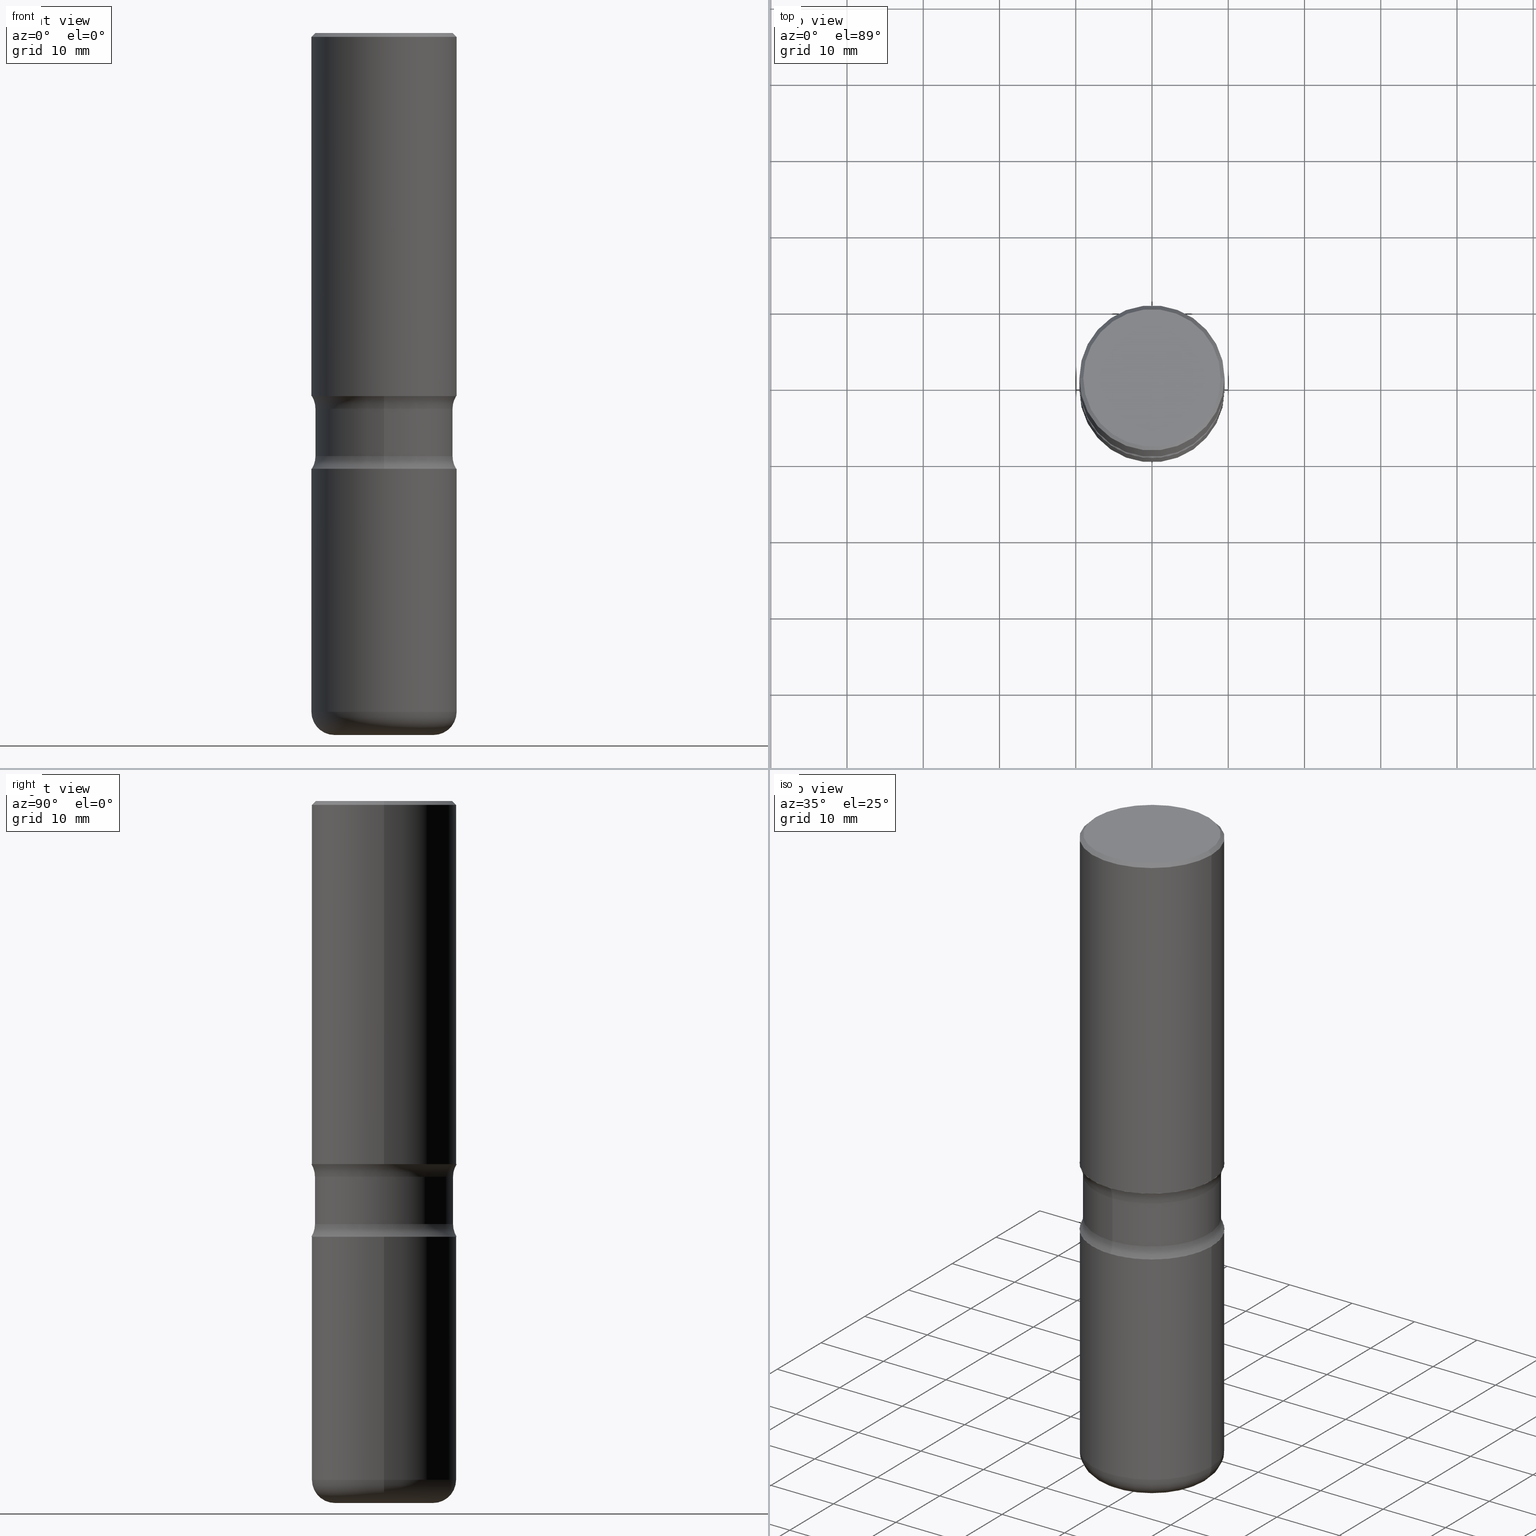
[diagram: canonical four-view strip — front | top / right | iso, engineering-drawing reading convention]
A machine part, canonical four-view strip (front | top / right | iso — engineering-drawing reading convention). The complete STEP part file that produces these views, byte-faithful:
ISO-10303-21;
HEADER;
FILE_DESCRIPTION (( 'STEP AP203' ),
    '1' );
FILE_NAME ('34115.STEP',
    '2024-03-01T23:05:45',
    ( '' ),
    ( '' ),
    'SwSTEP 2.0',
    'SolidWorks 2023',
    '' );
FILE_SCHEMA (( 'CONFIG_CONTROL_DESIGN' ));
ENDSEC;

DATA;
#1 = CYLINDRICAL_SURFACE ( 'NONE', #20, 0.3750000000000003886 ) ;
#2 = CIRCLE ( 'NONE', #207, 0.3564999999999999836 ) ;
#3 = CIRCLE ( 'NONE', #161, 0.3750000000000003886 ) ;
#4 = CARTESIAN_POINT ( 'NONE',  ( 0.3750000000000003886, -2.618611004132352383E-15, 1.828566290923477884E-29 ) ) ;
#5 = ORIENTED_EDGE ( 'NONE', *, *, #65, .F. ) ;
#6 = DATE_TIME_ROLE ( 'classification_date' ) ;
#7 = CARTESIAN_POINT ( 'NONE',  ( 2.478951750578625787E-15, 0.3550000000000001488, -1.237341619044267019E-15 ) ) ;
#8 = VERTEX_POINT ( 'NONE', #291 ) ;
#9 = COORDINATED_UNIVERSAL_TIME_OFFSET ( 5, 0, .BEHIND. ) ;
#10 = DIRECTION ( 'NONE',  ( 1.000000000000000000, -6.982962677686266711E-15, 0.000000000000000000 ) ) ;
#11 = AXIS2_PLACEMENT_3D ( 'NONE', #26, #549, #470 ) ;
#12 = EDGE_LOOP ( 'NONE', ( #104, #347, #353, #16 ) ) ;
#13 = CARTESIAN_POINT ( 'NONE',  ( 4.585254011597132801E-29, -6.546527510330900285E-15, -1.875000000000000666 ) ) ;
#14 = ORIENTED_EDGE ( 'NONE', *, *, #228, .F. ) ;
#15 = DIRECTION ( 'NONE',  ( -2.445468806185136877E-29, 3.491481338843145188E-15, 1.000000000000000000 ) ) ;
#16 = ORIENTED_EDGE ( 'NONE', *, *, #204, .F. ) ;
#17 = APPROVAL ( #394, 'UNSPECIFIED' ) ;
#18 = DIRECTION ( 'NONE',  ( -2.445468806185136597E-29, 3.491481338843145583E-15, 1.000000000000000000 ) ) ;
#19 = ORIENTED_EDGE ( 'NONE', *, *, #131, .F. ) ;
#20 = AXIS2_PLACEMENT_3D ( 'NONE', #31, #160, #333 ) ;
#21 = AXIS2_PLACEMENT_3D ( 'NONE', #119, #81, #84 ) ;
#22 = ADVANCED_FACE ( 'NONE', ( #173 ), #407, .F. ) ;
#23 = CARTESIAN_POINT ( 'NONE',  ( 4.585254011597132801E-29, -6.546527510330900285E-15, -1.875000000000000666 ) ) ;
#24 = VERTEX_POINT ( 'NONE', #412 ) ;
#25 = PLANE ( 'NONE',  #336 ) ;
#26 = CARTESIAN_POINT ( 'NONE',  ( 4.755380187780347497E-29, -6.760572911487338460E-15, -1.940442723048480866 ) ) ;
#27 = PLANE ( 'NONE',  #511 ) ;
#28 = CIRCLE ( 'NONE', #510, 0.3750000000000002776 ) ;
#29 = AXIS2_PLACEMENT_3D ( 'NONE', #127, #559, #123 ) ;
#30 = DIRECTION ( 'NONE',  ( -2.445468806185136597E-29, 3.491481338843145583E-15, 1.000000000000000000 ) ) ;
#31 = CARTESIAN_POINT ( 'NONE',  ( 0.000000000000000000, 0.000000000000000000, 0.000000000000000000 ) ) ;
#32 = DIRECTION ( 'NONE',  ( -2.445468806185136877E-29, 3.491481338843145188E-15, 1.000000000000000000 ) ) ;
#33 = EDGE_CURVE ( 'NONE', #506, #350, #285, .T. ) ;
#34 = VECTOR ( 'NONE', #435, 39.37007874015748143 ) ;
#35 = DIRECTION ( 'NONE',  ( 1.000000000000000000, -6.982962677686266711E-15, 4.876231632511985941E-29 ) ) ;
#36 = LOCAL_TIME ( 18, 5, 45.00000000000000000, #187 ) ;
#37 = ORIENTED_EDGE ( 'NONE', *, *, #513, .F. ) ;
#38 = CARTESIAN_POINT ( 'NONE',  ( 4.597474736719097866E-29, -6.529026736395767994E-15, -1.875000000000000666 ) ) ;
#39 = PRODUCT_DEFINITION_SHAPE ( 'NONE', 'NONE',  #270 ) ;
#40 = DATE_AND_TIME ( #48, #216 ) ;
#41 = DIRECTION ( 'NONE',  ( 6.982962677686265922E-15, 1.000000000000000000, -3.538150069336831953E-15 ) ) ;
#42 = PERSON_AND_ORGANIZATION_ROLE ( 'creator' ) ;
#43 = CARTESIAN_POINT ( 'NONE',  ( 0.3750000000000003886, -1.047444401652943320E-14, -2.250000000000000888 ) ) ;
#44 = AXIS2_PLACEMENT_3D ( 'NONE', #7, #94, #142 ) ;
#45 = CC_DESIGN_APPROVAL ( #409, ( #433 ) ) ;
#46 = ADVANCED_FACE ( 'NONE', ( #497 ), #417, .T. ) ;
#47 = APPLICATION_CONTEXT ( 'configuration controlled 3d designs of mechanical parts and assemblies' ) ;
#48 = CALENDAR_DATE ( 2024, 1, 3 ) ;
#49 = FACE_OUTER_BOUND ( 'NONE', #402, .T. ) ;
#50 = CC_DESIGN_PERSON_AND_ORGANIZATION_ASSIGNMENT ( #359, #136, ( #270 ) ) ;
#51 = COORDINATED_UNIVERSAL_TIME_OFFSET ( 5, 0, .BEHIND. ) ;
#52 = DIRECTION ( 'NONE',  ( 1.000000000000000000, -6.982962677686265133E-15, 0.000000000000000000 ) ) ;
#53 = EDGE_LOOP ( 'NONE', ( #5, #19 ) ) ;
#54 = PERSON_AND_ORGANIZATION ( #143, #525 ) ;
#55 = DIRECTION ( 'NONE',  ( 6.982962677686265922E-15, 1.000000000000000000, -3.538150069336831953E-15 ) ) ;
#56 = AXIS2_PLACEMENT_3D ( 'NONE', #374, #115, #387 ) ;
#57 = ORIENTED_EDGE ( 'NONE', *, *, #252, .T. ) ;
#58 = ADVANCED_FACE ( 'NONE', ( #171 ), #379, .T. ) ;
#59 = DIRECTION ( 'NONE',  ( 6.982962677686266711E-15, 1.000000000000000000, -3.831483862081716154E-15 ) ) ;
#60 = ORIENTED_EDGE ( 'NONE', *, *, #108, .T. ) ;
#61 = FACE_OUTER_BOUND ( 'NONE', #244, .T. ) ;
#62 = ORIENTED_EDGE ( 'NONE', *, *, #541, .F. ) ;
#63 = DIRECTION ( 'NONE',  ( 6.982962677686266711E-15, 1.000000000000000000, -3.065187089665372450E-15 ) ) ;
#64 = ORIENTED_EDGE ( 'NONE', *, *, #533, .F. ) ;
#65 = EDGE_CURVE ( 'NONE', #257, #410, #198, .T. ) ;
#66 = AXIS2_PLACEMENT_3D ( 'NONE', #70, #337, #457 ) ;
#67 = VECTOR ( 'NONE', #423, 39.37007874015748143 ) ;
#68 = CARTESIAN_POINT ( 'NONE',  ( -0.3750000000000003886, 2.664535259100378458E-15, -1.844600658845591560E-29 ) ) ;
#69 = APPROVAL ( #89, 'UNSPECIFIED' ) ;
#70 = CARTESIAN_POINT ( 'NONE',  ( 0.000000000000000000, 0.000000000000000000, 0.000000000000000000 ) ) ;
#71 = CARTESIAN_POINT ( 'NONE',  ( 1.971218490958228061E-28, 2.877417757725658922E-15, -3.625000000000000444 ) ) ;
#72 = DIRECTION ( 'NONE',  ( 1.000000000000000000, -6.982962677686267499E-15, 0.000000000000000000 ) ) ;
#73 = EDGE_CURVE ( 'NONE', #367, #426, #2, .T. ) ;
#74 = DIRECTION ( 'NONE',  ( 1.000000000000000000, -6.982962677686265922E-15, 4.876176775795935793E-29 ) ) ;
#75 = CIRCLE ( 'NONE', #91, 0.3750000000000004441 ) ;
#76 = CC_DESIGN_APPROVAL ( #69, ( #270 ) ) ;
#77 = LINE ( 'NONE', #501, #176 ) ;
#78 = PRODUCT_RELATED_PRODUCT_CATEGORY ( 'detail', '', ( #126 ) ) ;
#79 =( LENGTH_UNIT ( ) NAMED_UNIT ( * ) SI_UNIT ( $, .METRE. ) );
#80 = DIRECTION ( 'NONE',  ( 7.105427357601001859E-15, 1.000000000000000000, -3.491481338843145583E-15 ) ) ;
#81 = DIRECTION ( 'NONE',  ( 2.445468806185136597E-29, -3.491481338843145583E-15, -1.000000000000000000 ) ) ;
#82 = CIRCLE ( 'NONE', #399, 0.1199999999999998845 ) ;
#83 = CARTESIAN_POINT ( 'NONE',  ( 8.571368165678902740E-29, -1.223764209264522438E-14, -3.504999999999999893 ) ) ;
#84 = DIRECTION ( 'NONE',  ( -1.000000000000000000, 6.982962677686266711E-15, 0.000000000000000000 ) ) ;
#85 = DIRECTION ( 'NONE',  ( -2.445468806185136597E-29, 3.491481338843145583E-15, 1.000000000000000000 ) ) ;
#86 = ORIENTED_EDGE ( 'NONE', *, *, #262, .F. ) ;
#87 = FACE_OUTER_BOUND ( 'NONE', #221, .T. ) ;
#88 = ORIENTED_EDGE ( 'NONE', *, *, #108, .F. ) ;
#89 = APPROVAL_STATUS ( 'not_yet_approved' ) ;
#90 = DIRECTION ( 'NONE',  ( -2.445468806185136597E-29, 3.491481338843145583E-15, 1.000000000000000000 ) ) ;
#91 = AXIS2_PLACEMENT_3D ( 'NONE', #13, #437, #52 ) ;
#92 = AXIS2_PLACEMENT_3D ( 'NONE', #237, #281, #288 ) ;
#93 = PERSON_AND_ORGANIZATION ( #143, #525 ) ;
#94 = DIRECTION ( 'NONE',  ( 2.438088387897960049E-29, -3.491481338843145188E-15, -1.000000000000000000 ) ) ;
#95 = ORIENTED_EDGE ( 'NONE', *, *, #548, .F. ) ;
#96 = EDGE_CURVE ( 'NONE', #447, #8, #300, .T. ) ;
#97 = PERSON_AND_ORGANIZATION ( #143, #525 ) ;
#98 = DIRECTION ( 'NONE',  ( -2.445468806185136597E-29, 3.491481338843145583E-15, 1.000000000000000000 ) ) ;
#99 = ORIENTED_EDGE ( 'NONE', *, *, #388, .T. ) ;
#100 = CARTESIAN_POINT ( 'NONE',  ( 0.000000000000000000, 0.000000000000000000, 0.000000000000000000 ) ) ;
#101 = CIRCLE ( 'NONE', #264, 0.1250000000000000278 ) ;
#102 = EDGE_LOOP ( 'NONE', ( #37, #186, #499, #86 ) ) ;
#103 = CYLINDRICAL_SURFACE ( 'NONE', #398, 0.3564999999999999836 ) ;
#104 = ORIENTED_EDGE ( 'NONE', *, *, #315, .F. ) ;
#105 = CARTESIAN_POINT ( 'NONE',  ( -1.043851414335219820E-46, 1.490343170380447200E-32, 4.268512490100411279E-18 ) ) ;
#106 = ORIENTED_EDGE ( 'NONE', *, *, #463, .T. ) ;
#107 = FACE_OUTER_BOUND ( 'NONE', #489, .T. ) ;
#108 = EDGE_CURVE ( 'NONE', #8, #426, #101, .T. ) ;
#109 = EDGE_CURVE ( 'NONE', #471, #492, #325, .T. ) ;
#110 = VECTOR ( 'NONE', #203, 39.37007874015748143 ) ;
#111 = FACE_OUTER_BOUND ( 'NONE', #558, .T. ) ;
#112 = AXIS2_PLACEMENT_3D ( 'NONE', #405, #148, #290 ) ;
#113 = CC_DESIGN_PERSON_AND_ORGANIZATION_ASSIGNMENT ( #54, #42, ( #433 ) ) ;
#114 = DIRECTION ( 'NONE',  ( 0.7071067811865461294, -7.319954787623251312E-15, -0.7071067811865489050 ) ) ;
#115 = DIRECTION ( 'NONE',  ( 2.412880205859895394E-29, -3.538150069336831953E-15, -1.000000000000000000 ) ) ;
#116 = FACE_OUTER_BOUND ( 'NONE', #393, .T. ) ;
#117 = DIRECTION ( 'NONE',  ( 6.982962677686266711E-15, 1.000000000000000000, -3.642463991552348591E-15 ) ) ;
#118 =( GEOMETRIC_REPRESENTATION_CONTEXT ( 3 ) GLOBAL_UNCERTAINTY_ASSIGNED_CONTEXT ( ( #377 ) ) GLOBAL_UNIT_ASSIGNED_CONTEXT ( ( #385, #172, #553 ) ) REPRESENTATION_CONTEXT ( 'NONE', 'WORKASPACE' ) );
#119 = CARTESIAN_POINT ( 'NONE',  ( 4.890937612370306439E-31, -6.982962677686338448E-17, -0.02000000000000013572 ) ) ;
#120 = EDGE_CURVE ( 'NONE', #271, #492, #246, .T. ) ;
#121 = CARTESIAN_POINT ( 'NONE',  ( 0.000000000000000000, 0.000000000000000000, 0.000000000000000000 ) ) ;
#122 = ADVANCED_FACE ( 'NONE', ( #129 ), #1, .T. ) ;
#123 = DIRECTION ( 'NONE',  ( 6.982962677686265922E-15, 1.000000000000000000, -3.538150069336831953E-15 ) ) ;
#124 = DIRECTION ( 'NONE',  ( 6.860497997771532351E-15, 1.000000000000000000, 0.000000000000000000 ) ) ;
#125 = AXIS2_PLACEMENT_3D ( 'NONE', #83, #85, #208 ) ;
#126 = PRODUCT ( '34115', '34115', '', ( #354 ) ) ;
#127 = CARTESIAN_POINT ( 'NONE',  ( 4.745292149404004444E-29, -6.775019556617748882E-15, -1.940442723048480866 ) ) ;
#128 = CONICAL_SURFACE ( 'NONE', #21, 0.3750000000000002220, 0.7853981633974463916 ) ;
#129 = FACE_OUTER_BOUND ( 'NONE', #102, .T. ) ;
#130 = ORIENTED_EDGE ( 'NONE', *, *, #65, .T. ) ;
#131 = EDGE_CURVE ( 'NONE', #410, #257, #240, .T. ) ;
#132 = DIRECTION ( 'NONE',  ( 2.412880205859895114E-29, -3.538150069336831953E-15, -1.000000000000000000 ) ) ;
#133 = ORIENTED_EDGE ( 'NONE', *, *, #33, .T. ) ;
#134 = APPROVAL_STATUS ( 'not_yet_approved' ) ;
#135 = LINE ( 'NONE', #311, #34 ) ;
#136 = PERSON_AND_ORGANIZATION_ROLE ( 'creator' ) ;
#137 = CARTESIAN_POINT ( 'NONE',  ( 5.502304813916559585E-29, -7.855833012397080026E-15, -2.250000000000000888 ) ) ;
#138 = AXIS2_PLACEMENT_3D ( 'NONE', #137, #189, #351 ) ;
#139 = APPROVAL_PERSON_ORGANIZATION ( #93, #409, #268 ) ;
#140 = ADVANCED_FACE ( 'NONE', ( #111 ), #287, .T. ) ;
#141 = PERSON_AND_ORGANIZATION_ROLE ( 'classification_officer' ) ;
#142 = DIRECTION ( 'NONE',  ( -1.000000000000000000, 6.982962677686265922E-15, -4.876176775795935793E-29 ) ) ;
#143 = PERSON ( 'UNSPECIFIED', 'UNSPECIFIED', 'UNSPECIFIED', ('UNSPECIFIED'), ('UNSPECIFIED'), ('UNSPECIFIED') ) ;
#144 = ORIENTED_EDGE ( 'NONE', *, *, #204, .T. ) ;
#145 = PERSON_AND_ORGANIZATION_ROLE ( 'design_owner' ) ;
#146 = DIRECTION ( 'NONE',  ( -2.445468806185136597E-29, 3.491481338843145583E-15, 1.000000000000000000 ) ) ;
#147 = ORIENTED_EDGE ( 'NONE', *, *, #219, .T. ) ;
#148 = DIRECTION ( 'NONE',  ( -2.445468806185136597E-29, 3.491481338843145583E-15, 1.000000000000000000 ) ) ;
#149 = CLOSED_SHELL ( 'NONE', ( #140, #297, #464, #46, #250, #344 ) ) ;
#150 = VECTOR ( 'NONE', #15, 39.37007874015748143 ) ;
#151 = ORIENTED_EDGE ( 'NONE', *, *, #262, .T. ) ;
#152 = ADVANCED_FACE ( 'NONE', ( #316 ), #322, .F. ) ;
#153 = CARTESIAN_POINT ( 'NONE',  ( -2.509227142684884613E-15, -0.3565000000000076441, -2.184557276951519356 ) ) ;
#154 = ORIENTED_EDGE ( 'NONE', *, *, #490, .T. ) ;
#155 = CC_DESIGN_PERSON_AND_ORGANIZATION_ASSIGNMENT ( #225, #145, ( #126 ) ) ;
#156 = DIRECTION ( 'NONE',  ( 6.860497997771532351E-15, 1.000000000000000000, 0.000000000000000000 ) ) ;
#157 = VERTEX_POINT ( 'NONE', #392 ) ;
#158 = CARTESIAN_POINT ( 'NONE',  ( 0.2550000000000003375, -1.401829757545522428E-14, -3.504999999999999893 ) ) ;
#159 = VECTOR ( 'NONE', #235, 39.37007874015748143 ) ;
#160 = DIRECTION ( 'NONE',  ( -2.445468806185136597E-29, 3.491481338843145583E-15, 1.000000000000000000 ) ) ;
#161 = AXIS2_PLACEMENT_3D ( 'NONE', #338, #547, #284 ) ;
#162 = DIRECTION ( 'NONE',  ( 2.412880205859895394E-29, -3.538150069336831953E-15, -1.000000000000000000 ) ) ;
#163 = MANIFOLD_SOLID_BREP ( 'Body-Move/Copy2[1]', #149 ) ;
#164 = VERTEX_POINT ( 'NONE', #477 ) ;
#165 = EDGE_CURVE ( 'NONE', #261, #24, #28, .T. ) ;
#166 = DIRECTION ( 'NONE',  ( -1.000000000000000000, 6.982962677686265922E-15, -4.876176775795935793E-29 ) ) ;
#167 = AXIS2_PLACEMENT_3D ( 'NONE', #390, #223, #193 ) ;
#168 = AXIS2_PLACEMENT_3D ( 'NONE', #368, #197, #493 ) ;
#169 = DIRECTION ( 'NONE',  ( 1.000000000000000000, -6.982962677686265922E-15, 0.000000000000000000 ) ) ;
#170 = CARTESIAN_POINT ( 'NONE',  ( -1.043851414335219820E-46, 1.490343170380447200E-32, 4.268512490100411279E-18 ) ) ;
#171 = FACE_OUTER_BOUND ( 'NONE', #478, .T. ) ;
#172 =( NAMED_UNIT ( * ) PLANE_ANGLE_UNIT ( ) SI_UNIT ( $, .RADIAN. ) );
#173 = FACE_OUTER_BOUND ( 'NONE', #428, .T. ) ;
#174 = AXIS2_PLACEMENT_3D ( 'NONE', #230, #146, #480 ) ;
#175 = APPROVAL_DATE_TIME ( #317, #17 ) ;
#176 = VECTOR ( 'NONE', #32, 39.37007874015748143 ) ;
#177 = PLANE ( 'NONE',  #138 ) ;
#178 = ORIENTED_EDGE ( 'NONE', *, *, #96, .F. ) ;
#179 = CC_DESIGN_DATE_AND_TIME_ASSIGNMENT ( #40, #6, ( #425 ) ) ;
#180 = COORDINATED_UNIVERSAL_TIME_OFFSET ( 5, 0, .BEHIND. ) ;
#181 = CARTESIAN_POINT ( 'NONE',  ( -0.3750000000000002220, -9.573106833544843947E-15, -3.504999999999999893 ) ) ;
#182 = ORIENTED_EDGE ( 'NONE', *, *, #109, .T. ) ;
#183 = PERSON_AND_ORGANIZATION ( #143, #525 ) ;
#184 = ADVANCED_FACE ( 'NONE', ( #232 ), #484, .F. ) ;
#185 = DIRECTION ( 'NONE',  ( 1.000000000000000000, -6.982962677686265922E-15, 4.876176775795935793E-29 ) ) ;
#186 = ORIENTED_EDGE ( 'NONE', *, *, #214, .T. ) ;
#187 = COORDINATED_UNIVERSAL_TIME_OFFSET ( 5, 0, .BEHIND. ) ;
#188 = TOROIDAL_SURFACE ( 'NONE', #450, 0.4815000000000000391, 0.1250000000000000278 ) ;
#189 = DIRECTION ( 'NONE',  ( -2.412880205859895114E-29, 3.538150069336831953E-15, 1.000000000000000000 ) ) ;
#190 = CIRCLE ( 'NONE', #442, 0.3550000000000001488 ) ;
#191 = CC_DESIGN_SECURITY_CLASSIFICATION ( #425, ( #433 ) ) ;
#192 = ORIENTED_EDGE ( 'NONE', *, *, #165, .T. ) ;
#193 = DIRECTION ( 'NONE',  ( -6.982962677686265133E-15, -1.000000000000000000, 0.000000000000000000 ) ) ;
#194 = ORIENTED_EDGE ( 'NONE', *, *, #548, .T. ) ;
#195 = CARTESIAN_POINT ( 'NONE',  ( -2.445767536205462640E-15, -0.3565000000000126956, -3.624999999999999556 ) ) ;
#196 = ORIENTED_EDGE ( 'NONE', *, *, #332, .F. ) ;
#197 = DIRECTION ( 'NONE',  ( -1.000000000000000000, 6.982962677686265922E-15, -4.883557194083112340E-29 ) ) ;
#198 = CIRCLE ( 'NONE', #502, 0.3750000000000002776 ) ;
#199 = CIRCLE ( 'NONE', #112, 0.3750000000000003886 ) ;
#200 = VERTEX_POINT ( 'NONE', #276 ) ;
#201 = DIRECTION ( 'NONE',  ( -2.445468806185136597E-29, 3.491481338843145583E-15, 1.000000000000000000 ) ) ;
#202 = VERTEX_POINT ( 'NONE', #475 ) ;
#203 = DIRECTION ( 'NONE',  ( 2.412880205859895114E-29, -3.538150069336831953E-15, -1.000000000000000000 ) ) ;
#204 = EDGE_CURVE ( 'NONE', #426, #367, #523, .T. ) ;
#205 = DIRECTION ( 'NONE',  ( 2.412880205859895394E-29, -3.538150069336831953E-15, -1.000000000000000000 ) ) ;
#206 = CARTESIAN_POINT ( 'NONE',  ( 2.489426194595207267E-15, 0.3564999999999923785, -2.184557276951522020 ) ) ;
#207 = AXIS2_PLACEMENT_3D ( 'NONE', #260, #420, #386 ) ;
#208 = DIRECTION ( 'NONE',  ( 1.000000000000000000, -6.982962677686263555E-15, 4.883557194083111219E-29 ) ) ;
#209 = AXIS2_PLACEMENT_3D ( 'NONE', #170, #295, #35 ) ;
#210 = LENGTH_MEASURE_WITH_UNIT ( LENGTH_MEASURE( 0.02539999999999999897 ), #79 );
#211 = DIMENSIONAL_EXPONENTS ( 1.000000000000000000, 0.000000000000000000, 0.000000000000000000, 0.000000000000000000, 0.000000000000000000, 0.000000000000000000, 0.000000000000000000 ) ;
#212 = VERTEX_POINT ( 'NONE', #43 ) ;
#213 = DIRECTION ( 'NONE',  ( -1.000000000000000000, 7.105427357600997914E-15, 0.000000000000000000 ) ) ;
#214 = EDGE_CURVE ( 'NONE', #164, #227, #75, .T. ) ;
#215 = APPROVAL_PERSON_ORGANIZATION ( #183, #17, #313 ) ;
#216 = LOCAL_TIME ( 18, 5, 45.00000000000000000, #482 ) ;
#217 = DIRECTION ( 'NONE',  ( -2.438088387897960049E-29, 3.491481338843145188E-15, 1.000000000000000000 ) ) ;
#218 = DIRECTION ( 'NONE',  ( 2.412880205859895394E-29, -3.538150069336831953E-15, -1.000000000000000000 ) ) ;
#219 = EDGE_CURVE ( 'NONE', #447, #367, #495, .T. ) ;
#220 = ORIENTED_EDGE ( 'NONE', *, *, #109, .F. ) ;
#221 = EDGE_LOOP ( 'NONE', ( #242, #60, #144, #397 ) ) ;
#222 = APPROVAL_PERSON_ORGANIZATION ( #305, #69, #363 ) ;
#223 = DIRECTION ( 'NONE',  ( -1.000000000000000000, 6.982962677686265922E-15, -4.883557194083112340E-29 ) ) ;
#224 = ADVANCED_BREP_SHAPE_REPRESENTATION ( '34115', ( #163, #530, #361, #524 ), #118 ) ;
#225 = PERSON_AND_ORGANIZATION ( #143, #525 ) ;
#226 = CARTESIAN_POINT ( 'NONE',  ( 8.571368165678902740E-29, -1.223764209264522438E-14, -3.504999999999999893 ) ) ;
#227 = VERTEX_POINT ( 'NONE', #364 ) ;
#228 = EDGE_CURVE ( 'NONE', #157, #200, #376, .T. ) ;
#229 = APPROVAL_DATE_TIME ( #474, #69 ) ;
#230 = CARTESIAN_POINT ( 'NONE',  ( 8.864824422421120163E-29, -1.265661985330640259E-14, -3.624999999999999556 ) ) ;
#231 = ORIENTED_EDGE ( 'NONE', *, *, #395, .T. ) ;
#232 = FACE_OUTER_BOUND ( 'NONE', #278, .T. ) ;
#233 = TOROIDAL_SURFACE ( 'NONE', #29, 0.4814999999999999281, 0.1249999999999999861 ) ;
#234 = ORIENTED_EDGE ( 'NONE', *, *, #418, .F. ) ;
#235 = DIRECTION ( 'NONE',  ( -2.445468806185136877E-29, 3.491481338843145188E-15, 1.000000000000000000 ) ) ;
#236 = ORIENTED_EDGE ( 'NONE', *, *, #400, .T. ) ;
#237 = CARTESIAN_POINT ( 'NONE',  ( 4.755380187780347497E-29, -6.760572911487338460E-15, -1.940442723048480866 ) ) ;
#238 = ORIENTED_EDGE ( 'NONE', *, *, #131, .T. ) ;
#239 = CARTESIAN_POINT ( 'NONE',  ( 8.820015096973915297E-29, -1.272078935773522598E-14, -3.625000000000000888 ) ) ;
#240 = CIRCLE ( 'NONE', #486, 0.3750000000000002776 ) ;
#241 = LOCAL_TIME ( 18, 5, 45.00000000000000000, #51 ) ;
#242 = ORIENTED_EDGE ( 'NONE', *, *, #422, .F. ) ;
#243 = CARTESIAN_POINT ( 'NONE',  ( 8.820015096973915297E-29, -1.272078935773522598E-14, -3.625000000000000888 ) ) ;
#244 = EDGE_LOOP ( 'NONE', ( #88, #178, #147, #449 ) ) ;
#245 = FACE_OUTER_BOUND ( 'NONE', #12, .T. ) ;
#246 = LINE ( 'NONE', #249, #441 ) ;
#247 = CARTESIAN_POINT ( 'NONE',  ( -3.303329785926943528E-15, -0.4815000000000066449, -1.940442723048479312 ) ) ;
#248 = CLOSED_SHELL ( 'NONE', ( #455, #304, #552, #22, #152, #282, #324, #320 ) ) ;
#249 = CARTESIAN_POINT ( 'NONE',  ( -0.3750000000000002220, 2.548781377355488296E-15, -0.02000000000000013572 ) ) ;
#250 = ADVANCED_FACE ( 'NONE', ( #306 ), #396, .T. ) ;
#251 = CARTESIAN_POINT ( 'NONE',  ( 5.502304813916559585E-29, -7.855833012397080026E-15, -2.250000000000000888 ) ) ;
#252 = EDGE_CURVE ( 'NONE', #24, #212, #267, .T. ) ;
#253 = CARTESIAN_POINT ( 'NONE',  ( 0.3750000000000003886, -2.618611004132352383E-15, 1.828566290923477884E-29 ) ) ;
#254 = AXIS2_PLACEMENT_3D ( 'NONE', #251, #416, #169 ) ;
#255 = CARTESIAN_POINT ( 'NONE',  ( -0.2550000000000003375, -1.042575811645696493E-14, -3.504999999999999893 ) ) ;
#256 = CARTESIAN_POINT ( 'NONE',  ( 0.000000000000000000, 0.000000000000000000, 0.000000000000000000 ) ) ;
#257 = VERTEX_POINT ( 'NONE', #355 ) ;
#258 = DATE_AND_TIME ( #265, #546 ) ;
#259 = DESIGN_CONTEXT ( 'detailed design', #47, 'design' ) ;
#260 = CARTESIAN_POINT ( 'NONE',  ( 5.344399362855309954E-29, -7.624286837305509561E-15, -2.184557276951520688 ) ) ;
#261 = VERTEX_POINT ( 'NONE', #181 ) ;
#262 = EDGE_CURVE ( 'NONE', #492, #471, #424, .T. ) ;
#263 = ORIENTED_EDGE ( 'NONE', *, *, #165, .F. ) ;
#264 = AXIS2_PLACEMENT_3D ( 'NONE', #289, #544, #124 ) ;
#265 = CALENDAR_DATE ( 2024, 1, 3 ) ;
#266 = CIRCLE ( 'NONE', #209, 0.3550000000000001488 ) ;
#267 = LINE ( 'NONE', #4, #159 ) ;
#268 = APPROVAL_ROLE ( '' ) ;
#269 = DIRECTION ( 'NONE',  ( -2.445468806185136597E-29, 3.491481338843145583E-15, 1.000000000000000000 ) ) ;
#270 = PRODUCT_DEFINITION ( 'UNKNOWN', '', #433, #259 ) ;
#271 = VERTEX_POINT ( 'NONE', #518 ) ;
#272 = APPLICATION_CONTEXT ( 'configuration controlled 3d designs of mechanical parts and assemblies' ) ;
#273 = DIRECTION ( 'NONE',  ( 1.000000000000000000, -6.982962677686267499E-15, 0.000000000000000000 ) ) ;
#274 = EDGE_LOOP ( 'NONE', ( #542, #192, #57, #64 ) ) ;
#275 = AXIS2_PLACEMENT_3D ( 'NONE', #443, #401, #59 ) ;
#276 = CARTESIAN_POINT ( 'NONE',  ( 0.2550000000000003375, -1.443727533611640092E-14, -3.624999999999999556 ) ) ;
#277 = AXIS2_PLACEMENT_3D ( 'NONE', #383, #217, #341 ) ;
#278 = EDGE_LOOP ( 'NONE', ( #438, #154 ) ) ;
#279 = DIRECTION ( 'NONE',  ( 2.412880205859895394E-29, -3.538150069336831953E-15, -1.000000000000000000 ) ) ;
#280 = ORIENTED_EDGE ( 'NONE', *, *, #463, .F. ) ;
#281 = DIRECTION ( 'NONE',  ( 2.412880205859895394E-29, -3.538150069336831953E-15, -1.000000000000000000 ) ) ;
#282 = ADVANCED_FACE ( 'NONE', ( #403 ), #177, .F. ) ;
#283 = ORIENTED_EDGE ( 'NONE', *, *, #252, .F. ) ;
#284 = DIRECTION ( 'NONE',  ( 6.982962677686265922E-15, 1.000000000000000000, -3.642463991552347014E-15 ) ) ;
#285 = CIRCLE ( 'NONE', #11, 0.3564999999999999281 ) ;
#286 = VECTOR ( 'NONE', #114, 39.37007874015748143 ) ;
#287 = CYLINDRICAL_SURFACE ( 'NONE', #66, 0.3750000000000003886 ) ;
#288 = DIRECTION ( 'NONE',  ( 6.982962677686265922E-15, 1.000000000000000000, -3.831483862081716154E-15 ) ) ;
#289 = CARTESIAN_POINT ( 'NONE',  ( -3.303329785926938795E-15, -0.4815000000000076996, -2.184557276951518912 ) ) ;
#290 = DIRECTION ( 'NONE',  ( 1.000000000000000000, -6.982962677686265922E-15, 0.000000000000000000 ) ) ;
#291 = CARTESIAN_POINT ( 'NONE',  ( -2.572686749164271482E-15, -0.3750000000000082712, -2.249999999999999556 ) ) ;
#292 = CARTESIAN_POINT ( 'NONE',  ( -0.3750000000000002220, 2.548781377355488296E-15, -0.02000000000000013572 ) ) ;
#293 = AXIS2_PLACEMENT_3D ( 'NONE', #348, #427, #346 ) ;
#294 = CIRCLE ( 'NONE', #378, 0.1199999999999998845 ) ;
#295 = DIRECTION ( 'NONE',  ( -2.445468806185136597E-29, 3.491481338843145583E-15, 1.000000000000000000 ) ) ;
#296 = DIRECTION ( 'NONE',  ( 0.000000000000000000, 0.000000000000000000, 1.000000000000000000 ) ) ;
#297 = ADVANCED_FACE ( 'NONE', ( #49 ), #451, .T. ) ;
#298 = FACE_OUTER_BOUND ( 'NONE', #365, .T. ) ;
#299 = ORIENTED_EDGE ( 'NONE', *, *, #541, .T. ) ;
#300 = CIRCLE ( 'NONE', #56, 0.3750000000000003886 ) ;
#301 = AXIS2_PLACEMENT_3D ( 'NONE', #243, #279, #63 ) ;
#302 = CARTESIAN_POINT ( 'NONE',  ( 0.3750000000000002220, -2.642516375941189606E-15, -0.02000000000000013572 ) ) ;
#303 = EDGE_LOOP ( 'NONE', ( #519, #106, #182, #514 ) ) ;
#304 = ADVANCED_FACE ( 'NONE', ( #87 ), #188, .F. ) ;
#305 = PERSON_AND_ORGANIZATION ( #143, #525 ) ;
#306 = FACE_OUTER_BOUND ( 'NONE', #274, .T. ) ;
#307 = CC_DESIGN_PERSON_AND_ORGANIZATION_ASSIGNMENT ( #97, #141, ( #425 ) ) ;
#308 = ORIENTED_EDGE ( 'NONE', *, *, #533, .T. ) ;
#309 = CALENDAR_DATE ( 2024, 1, 3 ) ;
#310 = EDGE_CURVE ( 'NONE', #506, #367, #135, .T. ) ;
#311 = CARTESIAN_POINT ( 'NONE',  ( 2.489426194595242372E-15, 0.3564999999999873270, -3.625000000000001776 ) ) ;
#312 = AXIS2_PLACEMENT_3D ( 'NONE', #516, #352, #10 ) ;
#313 = APPROVAL_ROLE ( '' ) ;
#314 = CIRCLE ( 'NONE', #467, 0.2550000000000003375 ) ;
#315 = EDGE_CURVE ( 'NONE', #350, #426, #439, .T. ) ;
#316 = FACE_OUTER_BOUND ( 'NONE', #53, .T. ) ;
#317 = DATE_AND_TIME ( #476, #36 ) ;
#318 = DIRECTION ( 'NONE',  ( 2.412880205859895394E-29, -3.538150069336831953E-15, -1.000000000000000000 ) ) ;
#319 = ORIENTED_EDGE ( 'NONE', *, *, #360, .T. ) ;
#320 = ADVANCED_FACE ( 'NONE', ( #245 ), #103, .T. ) ;
#321 = PERSON_AND_ORGANIZATION ( #143, #525 ) ;
#322 = PLANE ( 'NONE',  #342 ) ;
#323 = ORIENTED_EDGE ( 'NONE', *, *, #414, .T. ) ;
#324 = ADVANCED_FACE ( 'NONE', ( #61 ), #335, .F. ) ;
#325 = CIRCLE ( 'NONE', #293, 0.3750000000000002220 ) ;
#326 = CYLINDRICAL_SURFACE ( 'NONE', #301, 0.3564999999999999836 ) ;
#327 = AXIS2_PLACEMENT_3D ( 'NONE', #465, #550, #500 ) ;
#328 = ORIENTED_EDGE ( 'NONE', *, *, #310, .F. ) ;
#329 = CARTESIAN_POINT ( 'NONE',  ( 0.3750000000000002220, -2.642516375941189606E-15, -0.02000000000000013572 ) ) ;
#330 = ORIENTED_EDGE ( 'NONE', *, *, #332, .T. ) ;
#331 = DIRECTION ( 'NONE',  ( 1.000000000000000000, -6.982962677686265133E-15, 0.000000000000000000 ) ) ;
#332 = EDGE_CURVE ( 'NONE', #350, #410, #554, .T. ) ;
#333 = DIRECTION ( 'NONE',  ( 1.000000000000000000, -6.982962677686265922E-15, 4.876176775795935793E-29 ) ) ;
#334 = DIRECTION ( 'NONE',  ( 1.000000000000000000, -6.982962677686258822E-15, 0.000000000000000000 ) ) ;
#335 = TOROIDAL_SURFACE ( 'NONE', #419, 0.4815000000000000391, 0.1250000000000000278 ) ;
#336 = AXIS2_PLACEMENT_3D ( 'NONE', #411, #375, #408 ) ;
#337 = DIRECTION ( 'NONE',  ( -2.445468806185136597E-29, 3.491481338843145583E-15, 1.000000000000000000 ) ) ;
#338 = CARTESIAN_POINT ( 'NONE',  ( 5.502304813916559585E-29, -7.855833012397080026E-15, -2.250000000000000888 ) ) ;
#339 = DIRECTION ( 'NONE',  ( -2.445468806185136597E-29, 3.491481338843145583E-15, 1.000000000000000000 ) ) ;
#340 = CARTESIAN_POINT ( 'NONE',  ( 2.489426194595200956E-15, 0.3564999999999931557, -1.940442723048482199 ) ) ;
#341 = DIRECTION ( 'NONE',  ( 1.000000000000000000, -6.982962677686265922E-15, 4.876176775795935793E-29 ) ) ;
#342 = AXIS2_PLACEMENT_3D ( 'NONE', #527, #132, #522 ) ;
#343 = CIRCLE ( 'NONE', #503, 0.3750000000000002776 ) ;
#344 = ADVANCED_FACE ( 'NONE', ( #116 ), #25, .F. ) ;
#345 = PLANE ( 'NONE',  #277 ) ;
#346 = DIRECTION ( 'NONE',  ( 1.000000000000000000, -6.982962677686266711E-15, 0.000000000000000000 ) ) ;
#347 = ORIENTED_EDGE ( 'NONE', *, *, #372, .T. ) ;
#348 = CARTESIAN_POINT ( 'NONE',  ( 4.890937612370306439E-31, -6.982962677686338448E-17, -0.02000000000000013572 ) ) ;
#349 = AXIS2_PLACEMENT_3D ( 'NONE', #380, #459, #41 ) ;
#350 = VERTEX_POINT ( 'NONE', #498 ) ;
#351 = DIRECTION ( 'NONE',  ( -6.982962677686265922E-15, -1.000000000000000000, 3.538150069336831953E-15 ) ) ;
#352 = DIRECTION ( 'NONE',  ( -2.445468806185136597E-29, 3.491481338843145583E-15, 1.000000000000000000 ) ) ;
#353 = ORIENTED_EDGE ( 'NONE', *, *, #310, .T. ) ;
#354 = MECHANICAL_CONTEXT ( 'NONE', #272, 'mechanical' ) ;
#355 = CARTESIAN_POINT ( 'NONE',  ( 2.618611004132398137E-15, 0.3749999999999938383, -1.875000000000001998 ) ) ;
#356 = ORIENTED_EDGE ( 'NONE', *, *, #414, .F. ) ;
#357 = AXIS2_PLACEMENT_3D ( 'NONE', #226, #98, #472 ) ;
#358 = CIRCLE ( 'NONE', #537, 0.3750000000000004441 ) ;
#359 = PERSON_AND_ORGANIZATION ( #143, #525 ) ;
#360 = EDGE_CURVE ( 'NONE', #261, #202, #445, .T. ) ;
#361 = MANIFOLD_SOLID_BREP ( 'Body-Move/Copy2[4]', #248 ) ;
#362 = EDGE_LOOP ( 'NONE', ( #532, #330, #238, #356 ) ) ;
#363 = APPROVAL_ROLE ( '' ) ;
#364 = CARTESIAN_POINT ( 'NONE',  ( 0.3750000000000004441, -9.165138514463253457E-15, -1.875000000000000666 ) ) ;
#365 = EDGE_LOOP ( 'NONE', ( #280, #234, #517, #151 ) ) ;
#366 = DIRECTION ( 'NONE',  ( 2.412880205859895394E-29, -3.538150069336831953E-15, -1.000000000000000000 ) ) ;
#367 = VERTEX_POINT ( 'NONE', #206 ) ;
#368 = CARTESIAN_POINT ( 'NONE',  ( 3.362296529305983901E-15, 0.4814999999999931557, -1.940442723048482421 ) ) ;
#369 = AXIS2_PLACEMENT_3D ( 'NONE', #247, #491, #156 ) ;
#370 = ORIENTED_EDGE ( 'NONE', *, *, #214, .F. ) ;
#371 = ORIENTED_EDGE ( 'NONE', *, *, #96, .T. ) ;
#372 = EDGE_CURVE ( 'NONE', #350, #506, #453, .T. ) ;
#373 = DIRECTION ( 'NONE',  ( 6.982962677686266711E-15, 1.000000000000000000, -3.065187089665372450E-15 ) ) ;
#374 = CARTESIAN_POINT ( 'NONE',  ( 5.502304813916559585E-29, -7.855833012397080026E-15, -2.250000000000000888 ) ) ;
#375 = DIRECTION ( 'NONE',  ( 2.438088387897960049E-29, -3.491481338843145188E-15, -1.000000000000000000 ) ) ;
#376 = CIRCLE ( 'NONE', #174, 0.2550000000000003375 ) ;
#377 = UNCERTAINTY_MEASURE_WITH_UNIT (LENGTH_MEASURE( 1.000000000000000082E-05 ), #385, 'distance_accuracy_value', 'NONE');
#378 = AXIS2_PLACEMENT_3D ( 'NONE', #255, #80, #213 ) ;
#379 = CYLINDRICAL_SURFACE ( 'NONE', #536, 0.3750000000000003886 ) ;
#380 = CARTESIAN_POINT ( 'NONE',  ( 4.745292149404004444E-29, -6.775019556617748882E-15, -1.940442723048480866 ) ) ;
#381 = AXIS2_PLACEMENT_3D ( 'NONE', #100, #90, #185 ) ;
#382 = CIRCLE ( 'NONE', #254, 0.3750000000000003886 ) ;
#383 = CARTESIAN_POINT ( 'NONE',  ( 4.585254011597132801E-29, -6.546527510330900285E-15, -1.875000000000000666 ) ) ;
#384 = ORIENTED_EDGE ( 'NONE', *, *, #228, .T. ) ;
#385 =( CONVERSION_BASED_UNIT ( 'INCH', #210 ) LENGTH_UNIT ( ) NAMED_UNIT ( #211 ) );
#386 = DIRECTION ( 'NONE',  ( 6.982962677686266711E-15, 1.000000000000000000, -3.831483862081716154E-15 ) ) ;
#387 = DIRECTION ( 'NONE',  ( 6.982962677686265922E-15, 1.000000000000000000, -3.642463991552347014E-15 ) ) ;
#388 = EDGE_CURVE ( 'NONE', #227, #164, #358, .T. ) ;
#389 = LOCAL_TIME ( 18, 5, 45.00000000000000000, #9 ) ;
#390 = CARTESIAN_POINT ( 'NONE',  ( 3.362296529305990606E-15, 0.4814999999999923785, -2.184557276951522464 ) ) ;
#391 = CALENDAR_DATE ( 2024, 1, 3 ) ;
#392 = CARTESIAN_POINT ( 'NONE',  ( -0.2550000000000003375, -1.020892135533149591E-14, -3.624999999999999556 ) ) ;
#393 = EDGE_LOOP ( 'NONE', ( #236, #308 ) ) ;
#394 = APPROVAL_STATUS ( 'not_yet_approved' ) ;
#395 = EDGE_CURVE ( 'NONE', #200, #24, #82, .T. ) ;
#396 = CYLINDRICAL_SURFACE ( 'NONE', #381, 0.3750000000000003886 ) ;
#397 = ORIENTED_EDGE ( 'NONE', *, *, #219, .F. ) ;
#398 = AXIS2_PLACEMENT_3D ( 'NONE', #239, #162, #373 ) ;
#399 = AXIS2_PLACEMENT_3D ( 'NONE', #158, #543, #334 ) ;
#400 = EDGE_CURVE ( 'NONE', #212, #202, #199, .T. ) ;
#401 = DIRECTION ( 'NONE',  ( 2.412880205859895394E-29, -3.538150069336831953E-15, -1.000000000000000000 ) ) ;
#402 = EDGE_LOOP ( 'NONE', ( #194, #299, #528, #557 ) ) ;
#403 = FACE_OUTER_BOUND ( 'NONE', #473, .T. ) ;
#404 = ORIENTED_EDGE ( 'NONE', *, *, #446, .T. ) ;
#405 = CARTESIAN_POINT ( 'NONE',  ( 5.502304813916559585E-29, -7.855833012397080026E-15, -2.250000000000000888 ) ) ;
#406 = VERTEX_POINT ( 'NONE', #496 ) ;
#407 = TOROIDAL_SURFACE ( 'NONE', #349, 0.4814999999999999281, 0.1249999999999999861 ) ;
#408 = DIRECTION ( 'NONE',  ( -1.000000000000000000, 6.982962677686265922E-15, -4.876176775795935793E-29 ) ) ;
#409 = APPROVAL ( #134, 'UNSPECIFIED' ) ;
#410 = VERTEX_POINT ( 'NONE', #458 ) ;
#411 = CARTESIAN_POINT ( 'NONE',  ( 5.502304813916559585E-29, -7.855833012397080026E-15, -2.250000000000000888 ) ) ;
#412 = CARTESIAN_POINT ( 'NONE',  ( 0.3750000000000002220, -1.485625309677757439E-14, -3.504999999999999893 ) ) ;
#413 = CARTESIAN_POINT ( 'NONE',  ( 5.342266676109687941E-29, -7.627340966110231428E-15, -2.184557276951520688 ) ) ;
#414 = EDGE_CURVE ( 'NONE', #506, #257, #461, .T. ) ;
#415 = ORIENTED_EDGE ( 'NONE', *, *, #422, .T. ) ;
#416 = DIRECTION ( 'NONE',  ( -2.445468806185136597E-29, 3.491481338843145583E-15, 1.000000000000000000 ) ) ;
#417 = TOROIDAL_SURFACE ( 'NONE', #125, 0.2550000000000003375, 0.1199999999999998845 ) ;
#418 = EDGE_CURVE ( 'NONE', #271, #406, #190, .T. ) ;
#419 = AXIS2_PLACEMENT_3D ( 'NONE', #413, #366, #540 ) ;
#420 = DIRECTION ( 'NONE',  ( 2.412880205859895394E-29, -3.538150069336831953E-15, -1.000000000000000000 ) ) ;
#421 = DIRECTION ( 'NONE',  ( 1.000000000000000000, -6.982962677686266711E-15, 0.000000000000000000 ) ) ;
#422 = EDGE_CURVE ( 'NONE', #8, #447, #3, .T. ) ;
#423 = DIRECTION ( 'NONE',  ( -2.445468806185136877E-29, 3.491481338843145188E-15, 1.000000000000000000 ) ) ;
#424 = CIRCLE ( 'NONE', #312, 0.3750000000000002220 ) ;
#425 = SECURITY_CLASSIFICATION ( '', '', #529 ) ;
#426 = VERTEX_POINT ( 'NONE', #153 ) ;
#427 = DIRECTION ( 'NONE',  ( -2.445468806185136597E-29, 3.491481338843145583E-15, 1.000000000000000000 ) ) ;
#428 = EDGE_LOOP ( 'NONE', ( #196, #485, #323, #130 ) ) ;
#429 = DATE_TIME_ROLE ( 'creation_date' ) ;
#430 = ORIENTED_EDGE ( 'NONE', *, *, #468, .F. ) ;
#431 = CARTESIAN_POINT ( 'NONE',  ( 5.342266676109687941E-29, -7.627340966110231428E-15, -2.184557276951520688 ) ) ;
#432 = ORIENTED_EDGE ( 'NONE', *, *, #315, .T. ) ;
#433 = PRODUCT_DEFINITION_FORMATION_WITH_SPECIFIED_SOURCE ( 'ANY', '', #126, .NOT_KNOWN. ) ;
#434 = DIRECTION ( 'NONE',  ( 1.000000000000000000, 0.000000000000000000, 0.000000000000000000 ) ) ;
#435 = DIRECTION ( 'NONE',  ( 2.412880205859895114E-29, -3.538150069336831953E-15, -1.000000000000000000 ) ) ;
#436 = APPROVAL_DATE_TIME ( #515, #409 ) ;
#437 = DIRECTION ( 'NONE',  ( -2.445468806185136597E-29, 3.491481338843145583E-15, 1.000000000000000000 ) ) ;
#438 = ORIENTED_EDGE ( 'NONE', *, *, #418, .T. ) ;
#439 = LINE ( 'NONE', #195, #110 ) ;
#440 = EDGE_LOOP ( 'NONE', ( #62, #384, #231, #263 ) ) ;
#441 = VECTOR ( 'NONE', #509, 39.37007874015748143 ) ;
#442 = AXIS2_PLACEMENT_3D ( 'NONE', #105, #18, #538 ) ;
#443 = CARTESIAN_POINT ( 'NONE',  ( 5.344399362855309954E-29, -7.624286837305509561E-15, -2.184557276951520688 ) ) ;
#444 = ORIENTED_EDGE ( 'NONE', *, *, #513, .T. ) ;
#445 = LINE ( 'NONE', #68, #150 ) ;
#446 = EDGE_CURVE ( 'NONE', #24, #261, #343, .T. ) ;
#447 = VERTEX_POINT ( 'NONE', #452 ) ;
#448 = CARTESIAN_POINT ( 'NONE',  ( 8.571368165678902740E-29, -1.223764209264522438E-14, -3.504999999999999893 ) ) ;
#449 = ORIENTED_EDGE ( 'NONE', *, *, #73, .T. ) ;
#450 = AXIS2_PLACEMENT_3D ( 'NONE', #431, #318, #55 ) ;
#451 = TOROIDAL_SURFACE ( 'NONE', #357, 0.2550000000000003375, 0.1199999999999998845 ) ;
#452 = CARTESIAN_POINT ( 'NONE',  ( 2.618611004132407209E-15, 0.3749999999999925060, -2.250000000000002220 ) ) ;
#453 = CIRCLE ( 'NONE', #92, 0.3564999999999999281 ) ;
#454 = CARTESIAN_POINT ( 'NONE',  ( 4.597474736719097866E-29, -6.529026736395767994E-15, -1.875000000000000666 ) ) ;
#455 = ADVANCED_FACE ( 'NONE', ( #107 ), #326, .T. ) ;
#456 = FACE_OUTER_BOUND ( 'NONE', #535, .T. ) ;
#457 = DIRECTION ( 'NONE',  ( 1.000000000000000000, -6.982962677686265922E-15, 4.876176775795935793E-29 ) ) ;
#458 = CARTESIAN_POINT ( 'NONE',  ( -2.572686749164280160E-15, -0.3750000000000068834, -1.874999999999999334 ) ) ;
#459 = DIRECTION ( 'NONE',  ( 2.412880205859895394E-29, -3.538150069336831953E-15, -1.000000000000000000 ) ) ;
#460 = FACE_OUTER_BOUND ( 'NONE', #303, .T. ) ;
#461 = CIRCLE ( 'NONE', #168, 0.1249999999999999584 ) ;
#462 = CARTESIAN_POINT ( 'NONE',  ( 8.864824422421120163E-29, -1.265661985330640259E-14, -3.624999999999999556 ) ) ;
#463 = EDGE_CURVE ( 'NONE', #406, #471, #488, .T. ) ;
#464 = ADVANCED_FACE ( 'NONE', ( #456 ), #27, .T. ) ;
#465 = CARTESIAN_POINT ( 'NONE',  ( 4.890937612370306439E-31, -6.982962677686338448E-17, -0.02000000000000013572 ) ) ;
#466 = ORIENTED_EDGE ( 'NONE', *, *, #388, .F. ) ;
#467 = AXIS2_PLACEMENT_3D ( 'NONE', #462, #30, #421 ) ;
#468 = EDGE_CURVE ( 'NONE', #227, #471, #556, .T. ) ;
#469 = DIRECTION ( 'NONE',  ( 2.438088387897960049E-29, -3.491481338843145188E-15, -1.000000000000000000 ) ) ;
#470 = DIRECTION ( 'NONE',  ( 6.982962677686265922E-15, 1.000000000000000000, -3.831483862081716154E-15 ) ) ;
#471 = VERTEX_POINT ( 'NONE', #302 ) ;
#472 = DIRECTION ( 'NONE',  ( 1.000000000000000000, -6.982962677686263555E-15, 4.883557194083111219E-29 ) ) ;
#473 = EDGE_LOOP ( 'NONE', ( #371, #415 ) ) ;
#474 = DATE_AND_TIME ( #391, #241 ) ;
#475 = CARTESIAN_POINT ( 'NONE',  ( -0.3750000000000003886, -7.382202293420774138E-15, -2.250000000000000888 ) ) ;
#476 = CALENDAR_DATE ( 2024, 1, 3 ) ;
#477 = CARTESIAN_POINT ( 'NONE',  ( -0.3750000000000004441, -6.436433094535026432E-16, -1.875000000000000666 ) ) ;
#478 = EDGE_LOOP ( 'NONE', ( #99, #444, #220, #430 ) ) ;
#479 = APPLICATION_PROTOCOL_DEFINITION ( 'international standard', 'config_control_design', 1994, #47 ) ;
#480 = DIRECTION ( 'NONE',  ( 1.000000000000000000, -6.982962677686266711E-15, 0.000000000000000000 ) ) ;
#481 = ORIENTED_EDGE ( 'NONE', *, *, #73, .F. ) ;
#482 = COORDINATED_UNIVERSAL_TIME_OFFSET ( 5, 0, .BEHIND. ) ;
#483 = CC_DESIGN_PERSON_AND_ORGANIZATION_ASSIGNMENT ( #321, #526, ( #433 ) ) ;
#484 = PLANE ( 'NONE',  #44 ) ;
#485 = ORIENTED_EDGE ( 'NONE', *, *, #33, .F. ) ;
#486 = AXIS2_PLACEMENT_3D ( 'NONE', #38, #218, #494 ) ;
#487 = CONICAL_SURFACE ( 'NONE', #327, 0.3750000000000002220, 0.7853981633974463916 ) ;
#488 = LINE ( 'NONE', #329, #286 ) ;
#489 = EDGE_LOOP ( 'NONE', ( #133, #432, #481, #328 ) ) ;
#490 = EDGE_CURVE ( 'NONE', #406, #271, #266, .T. ) ;
#491 = DIRECTION ( 'NONE',  ( 1.000000000000000000, -6.860497997771530774E-15, 4.840227352509949110E-29 ) ) ;
#492 = VERTEX_POINT ( 'NONE', #292 ) ;
#493 = DIRECTION ( 'NONE',  ( -6.982962677686269077E-15, -1.000000000000000000, 0.000000000000000000 ) ) ;
#494 = DIRECTION ( 'NONE',  ( 6.982962677686266711E-15, 1.000000000000000000, -3.642463991552348591E-15 ) ) ;
#495 = CIRCLE ( 'NONE', #167, 0.1250000000000000278 ) ;
#496 = CARTESIAN_POINT ( 'NONE',  ( 0.3550000000000001488, -2.538996582575041837E-15, 4.268512490117958041E-18 ) ) ;
#497 = FACE_OUTER_BOUND ( 'NONE', #440, .T. ) ;
#498 = CARTESIAN_POINT ( 'NONE',  ( -2.509227142684891319E-15, -0.3565000000000067004, -1.940442723048479534 ) ) ;
#499 = ORIENTED_EDGE ( 'NONE', *, *, #468, .T. ) ;
#500 = DIRECTION ( 'NONE',  ( -1.000000000000000000, 6.982962677686266711E-15, 0.000000000000000000 ) ) ;
#501 = CARTESIAN_POINT ( 'NONE',  ( -0.3750000000000003886, 2.664535259100378458E-15, -1.844600658845591560E-29 ) ) ;
#502 = AXIS2_PLACEMENT_3D ( 'NONE', #454, #205, #117 ) ;
#503 = AXIS2_PLACEMENT_3D ( 'NONE', #448, #201, #72 ) ;
#504 = CC_DESIGN_DATE_AND_TIME_ASSIGNMENT ( #258, #429, ( #270 ) ) ;
#505 = FACE_OUTER_BOUND ( 'NONE', #362, .T. ) ;
#506 = VERTEX_POINT ( 'NONE', #340 ) ;
#507 = ADVANCED_FACE ( 'NONE', ( #508 ), #345, .F. ) ;
#508 = FACE_OUTER_BOUND ( 'NONE', #539, .T. ) ;
#509 = DIRECTION ( 'NONE',  ( -0.7071067811865461294, 2.468850131082242072E-15, -0.7071067811865489050 ) ) ;
#510 = AXIS2_PLACEMENT_3D ( 'NONE', #531, #269, #273 ) ;
#511 = AXIS2_PLACEMENT_3D ( 'NONE', #71, #469, #166 ) ;
#512 = CC_DESIGN_APPROVAL ( #17, ( #425 ) ) ;
#513 = EDGE_CURVE ( 'NONE', #164, #492, #77, .T. ) ;
#514 = ORIENTED_EDGE ( 'NONE', *, *, #120, .F. ) ;
#515 = DATE_AND_TIME ( #309, #389 ) ;
#516 = CARTESIAN_POINT ( 'NONE',  ( 4.890937612370306439E-31, -6.982962677686338448E-17, -0.02000000000000013572 ) ) ;
#517 = ORIENTED_EDGE ( 'NONE', *, *, #120, .T. ) ;
#518 = CARTESIAN_POINT ( 'NONE',  ( -0.3550000000000001488, 2.513866563967057041E-15, 4.268512490082953109E-18 ) ) ;
#519 = ORIENTED_EDGE ( 'NONE', *, *, #490, .F. ) ;
#520 = SHAPE_DEFINITION_REPRESENTATION ( #39, #224 ) ;
#521 = ADVANCED_FACE ( 'NONE', ( #460 ), #128, .T. ) ;
#522 = DIRECTION ( 'NONE',  ( 6.982962677686265922E-15, 1.000000000000000000, -3.538150069336831953E-15 ) ) ;
#523 = CIRCLE ( 'NONE', #275, 0.3564999999999999836 ) ;
#524 = AXIS2_PLACEMENT_3D ( 'NONE', #121, #296, #434 ) ;
#525 = ORGANIZATION ( 'UNSPECIFIED', 'UNSPECIFIED', '' ) ;
#526 = PERSON_AND_ORGANIZATION_ROLE ( 'design_supplier' ) ;
#527 = CARTESIAN_POINT ( 'NONE',  ( 4.585254011597132801E-29, -6.546527510330900285E-15, -1.875000000000000666 ) ) ;
#528 = ORIENTED_EDGE ( 'NONE', *, *, #446, .F. ) ;
#529 = SECURITY_CLASSIFICATION_LEVEL ( 'unclassified' ) ;
#530 = MANIFOLD_SOLID_BREP ( 'Body-Move/Copy2[2]', #545 ) ;
#531 = CARTESIAN_POINT ( 'NONE',  ( 8.571368165678902740E-29, -1.223764209264522438E-14, -3.504999999999999893 ) ) ;
#532 = ORIENTED_EDGE ( 'NONE', *, *, #372, .F. ) ;
#533 = EDGE_CURVE ( 'NONE', #202, #212, #382, .T. ) ;
#534 = DIRECTION ( 'NONE',  ( -2.445468806185136597E-29, 3.491481338843145583E-15, 1.000000000000000000 ) ) ;
#535 = EDGE_LOOP ( 'NONE', ( #95, #14 ) ) ;
#536 = AXIS2_PLACEMENT_3D ( 'NONE', #256, #339, #74 ) ;
#537 = AXIS2_PLACEMENT_3D ( 'NONE', #23, #534, #331 ) ;
#538 = DIRECTION ( 'NONE',  ( 1.000000000000000000, -6.982962677686266711E-15, 4.876231632511985941E-29 ) ) ;
#539 = EDGE_LOOP ( 'NONE', ( #466, #370 ) ) ;
#540 = DIRECTION ( 'NONE',  ( 6.982962677686265922E-15, 1.000000000000000000, -3.538150069336831953E-15 ) ) ;
#541 = EDGE_CURVE ( 'NONE', #157, #261, #294, .T. ) ;
#542 = ORIENTED_EDGE ( 'NONE', *, *, #360, .F. ) ;
#543 = DIRECTION ( 'NONE',  ( -6.982962677686266711E-15, -1.000000000000000000, 3.491481338843145583E-15 ) ) ;
#544 = DIRECTION ( 'NONE',  ( 1.000000000000000000, -6.860497997771530774E-15, 4.840227352509949110E-29 ) ) ;
#545 = CLOSED_SHELL ( 'NONE', ( #58, #521, #555, #184, #507, #122 ) ) ;
#546 = LOCAL_TIME ( 18, 5, 45.00000000000000000, #180 ) ;
#547 = DIRECTION ( 'NONE',  ( 2.412880205859895394E-29, -3.538150069336831953E-15, -1.000000000000000000 ) ) ;
#548 = EDGE_CURVE ( 'NONE', #200, #157, #314, .T. ) ;
#549 = DIRECTION ( 'NONE',  ( 2.412880205859895394E-29, -3.538150069336831953E-15, -1.000000000000000000 ) ) ;
#550 = DIRECTION ( 'NONE',  ( 2.445468806185136597E-29, -3.491481338843145583E-15, -1.000000000000000000 ) ) ;
#551 = APPLICATION_PROTOCOL_DEFINITION ( 'international standard', 'config_control_design', 1994, #272 ) ;
#552 = ADVANCED_FACE ( 'NONE', ( #505 ), #233, .F. ) ;
#553 =( NAMED_UNIT ( * ) SI_UNIT ( $, .STERADIAN. ) SOLID_ANGLE_UNIT ( ) );
#554 = CIRCLE ( 'NONE', #369, 0.1249999999999999584 ) ;
#555 = ADVANCED_FACE ( 'NONE', ( #298 ), #487, .T. ) ;
#556 = LINE ( 'NONE', #253, #67 ) ;
#557 = ORIENTED_EDGE ( 'NONE', *, *, #395, .F. ) ;
#558 = EDGE_LOOP ( 'NONE', ( #404, #319, #560, #283 ) ) ;
#559 = DIRECTION ( 'NONE',  ( 2.412880205859895394E-29, -3.538150069336831953E-15, -1.000000000000000000 ) ) ;
#560 = ORIENTED_EDGE ( 'NONE', *, *, #400, .F. ) ;
ENDSEC;
END-ISO-10303-21;
